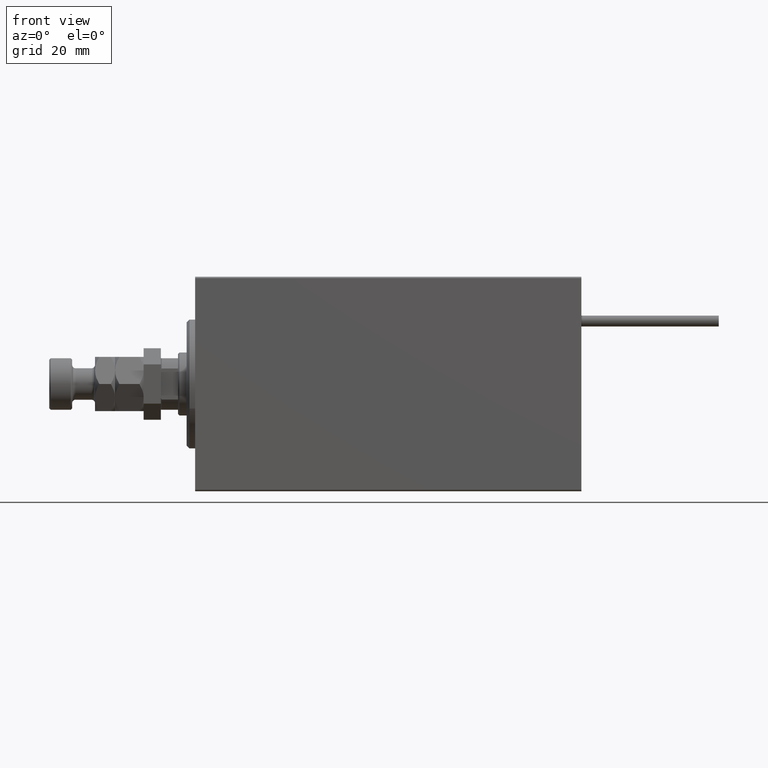
[diagram: clean part render]
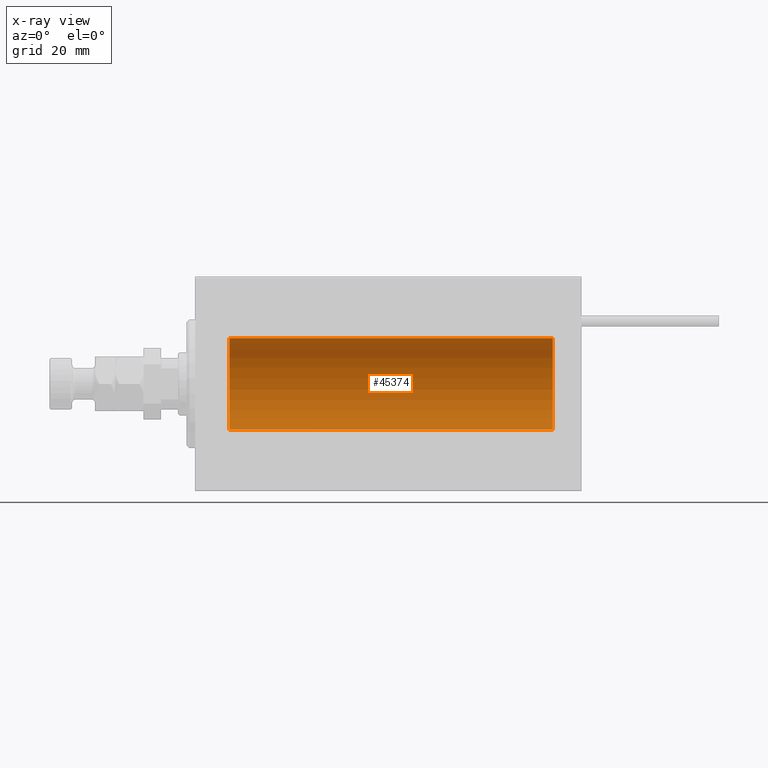
[diagram: x-ray — body ghosted, one internal face saturated and labeled with its STEP entity id]
A machine part, front view, then the same camera in x-ray: the body is ghosted and one INTERNAL B-rep face — a face not visible from any outside direction — is saturated and labeled: STEP entity #45374.
In plain terms, the highlighted cylindrical surface (partial cylindrical patch) has radius 16 mm, axis along (-1, -0, -0).
Its self-contained STEP definition (entity closure, byte-faithful):
#691 = ORIENTED_EDGE ( 'NONE', *, *, #12280, .F. ) ;
#794 = VECTOR ( 'NONE', #41159, 1000.000000000000000 ) ;
#3728 = VERTEX_POINT ( 'NONE', #17935 ) ;
#3886 = FACE_OUTER_BOUND ( 'NONE', #31582, .T. ) ;
#6275 = EDGE_CURVE ( 'NONE', #17595, #26881, #29726, .T. ) ;
#6702 = DIRECTION ( 'NONE',  ( 0.000000000000000000, 0.000000000000000000, 1.000000000000000000 ) ) ;
#7461 = AXIS2_PLACEMENT_3D ( 'NONE', #40337, #7745, #33455 ) ;
#7745 = DIRECTION ( 'NONE',  ( -1.000000000000000000, 0.000000000000000000, 0.000000000000000000 ) ) ;
#8022 = AXIS2_PLACEMENT_3D ( 'NONE', #22682, #15118, #11448 ) ;
#8133 = CARTESIAN_POINT ( 'NONE',  ( 11.99999999999999645, 0.000000000000000000, 16.00000000000000000 ) ) ;
#9994 = VECTOR ( 'NONE', #25506, 1000.000000000000000 ) ;
#11380 = DIRECTION ( 'NONE',  ( -1.000000000000000000, 0.000000000000000000, 0.000000000000000000 ) ) ;
#11448 = DIRECTION ( 'NONE',  ( 0.000000000000000000, 0.000000000000000000, 1.000000000000000000 ) ) ;
#12000 = EDGE_CURVE ( 'NONE', #3728, #26881, #49242, .T. ) ;
#12084 = EDGE_CURVE ( 'NONE', #48658, #17595, #49757, .T. ) ;
#12280 = EDGE_CURVE ( 'NONE', #48658, #3728, #26641, .T. ) ;
#12674 = CARTESIAN_POINT ( 'NONE',  ( 125.0000000000000000, 0.000000000000000000, 16.00000000000000000 ) ) ;
#13888 = AXIS2_PLACEMENT_3D ( 'NONE', #38792, #11380, #6702 ) ;
#15118 = DIRECTION ( 'NONE',  ( -1.000000000000000000, -0.000000000000000000, -0.000000000000000000 ) ) ;
#17595 = VERTEX_POINT ( 'NONE', #8133 ) ;
#17935 = CARTESIAN_POINT ( 'NONE',  ( 125.0000000000000000, 1.959434878635765131E-15, -16.00000000000000000 ) ) ;
#17979 = ORIENTED_EDGE ( 'NONE', *, *, #12084, .T. ) ;
#22682 = CARTESIAN_POINT ( 'NONE',  ( 125.0000000000000000, 0.000000000000000000, 0.000000000000000000 ) ) ;
#25506 = DIRECTION ( 'NONE',  ( -1.000000000000000000, -0.000000000000000000, -0.000000000000000000 ) ) ;
#25770 = CARTESIAN_POINT ( 'NONE',  ( 125.0000000000000000, 1.959434878635765131E-15, -16.00000000000000000 ) ) ;
#26641 = CIRCLE ( 'NONE', #7461, 16.00000000000000000 ) ;
#26881 = VERTEX_POINT ( 'NONE', #50878 ) ;
#29419 = CARTESIAN_POINT ( 'NONE',  ( 125.0000000000000000, 0.000000000000000000, 16.00000000000000000 ) ) ;
#29726 = CIRCLE ( 'NONE', #13888, 16.00000000000000000 ) ;
#31582 = EDGE_LOOP ( 'NONE', ( #49453, #691, #17979, #34812 ) ) ;
#33455 = DIRECTION ( 'NONE',  ( 0.000000000000000000, 0.000000000000000000, 1.000000000000000000 ) ) ;
#34812 = ORIENTED_EDGE ( 'NONE', *, *, #6275, .T. ) ;
#38792 = CARTESIAN_POINT ( 'NONE',  ( 11.99999999999999645, 0.000000000000000000, 0.000000000000000000 ) ) ;
#40337 = CARTESIAN_POINT ( 'NONE',  ( 125.0000000000000000, 0.000000000000000000, 0.000000000000000000 ) ) ;
#41159 = DIRECTION ( 'NONE',  ( -1.000000000000000000, -0.000000000000000000, -0.000000000000000000 ) ) ;
#45374 = ADVANCED_FACE ( 'NONE', ( #3886 ), #50854, .F. ) ;
#48658 = VERTEX_POINT ( 'NONE', #12674 ) ;
#49242 = LINE ( 'NONE', #25770, #794 ) ;
#49453 = ORIENTED_EDGE ( 'NONE', *, *, #12000, .F. ) ;
#49757 = LINE ( 'NONE', #29419, #9994 ) ;
#50854 = CYLINDRICAL_SURFACE ( 'NONE', #8022, 16.00000000000000000 ) ;
#50878 = CARTESIAN_POINT ( 'NONE',  ( 11.99999999999999645, 1.959434878635765131E-15, -16.00000000000000000 ) ) ;